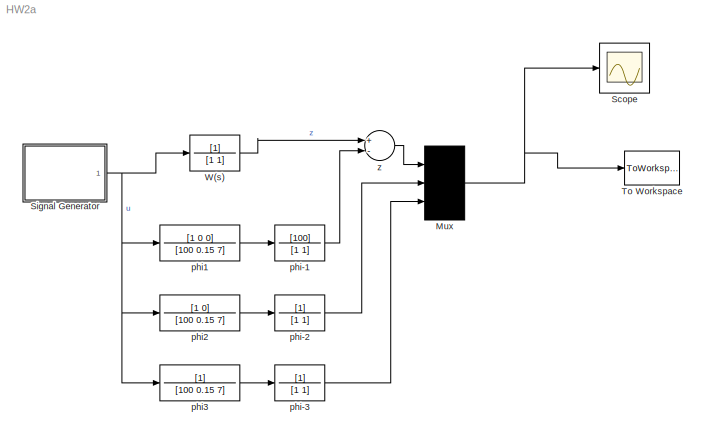
MODEL HW2a
KIND model
BLOCK [Mux] Mux
  Inputs = 3
  Ports = [3, 1]
  SID = 23
BLOCK [Scope] Scope
  Floating = off
  LegendLocations = 0.82167      0.7404     0.11808    0.094455
  NumInputPorts = 1
  Ports = [1]
  SID = 28
  ShowLegends = on
  TickLabels = on
  TimeRange = 50
  YMax = 20.000000
  YMin = -20.000000
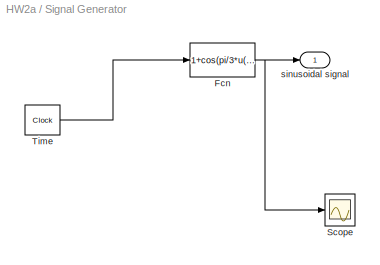
BLOCK [SubSystem] Signal Generator
  Ports = [0, 1]
  RequestExecContextInheritance = off
  SID = 29
  ShowPortLabels = none
BLOCK [Fcn] Signal Generator/Fcn
  Expr = 1+cos(pi/3*u(1))
  SID = 30
BLOCK [Scope] Signal Generator/Scope
  Floating = off
  NumInputPorts = 1
  Ports = [1]
  SID = 75
  SaveName = ScopeData1
BLOCK [Clock] Signal Generator/Time
  SID = 34
BLOCK [Outport] Signal Generator/sinusoidal signal
  IconDisplay = Port number
  SID = 35
BLOCK [ToWorkspace] To Workspace
  MaxDataPoints = 5000
  Ports = [1]
  SID = 48
  VariableName = yout
BLOCK [TransferFcn] W(s)
  SID = 49
BLOCK [TransferFcn] phi-1
  Numerator = [100]
  SID = 76
BLOCK [TransferFcn] phi-2
  SID = 77
BLOCK [TransferFcn] phi-3
  SID = 78
BLOCK [TransferFcn] phi1
  Denominator = [100 0.15 7]
  Numerator = [1 0 0]
  SID = 68
BLOCK [TransferFcn] phi2
  Denominator = [100 0.15 7]
  Numerator = [1 0]
  SID = 69
BLOCK [TransferFcn] phi3
  Denominator = [100 0.15 7]
  SID = 70
BLOCK [Sum] z
  InputSameDT = off
  Inputs = +-
  OutDataTypeStr = Inherit: Inherit via internal rule
  Ports = [2, 1]
  SID = 79
  SaturateOnIntegerOverflow = off
NET Mux:1 -> Scope:1, To Workspace:1
NET Signal Generator/Fcn:1 -> Signal Generator/Scope:1, Signal Generator/sinusoidal signal:1
LINE Signal Generator/Time:1 -> Signal Generator/Fcn:1
NET Signal Generator:1 -> W(s):1, phi1:1, phi2:1, phi3:1
LINE W(s):1 -> z:1
LINE phi-1:1 -> z:2
LINE phi-2:1 -> Mux:2
LINE phi-3:1 -> Mux:3
LINE phi1:1 -> phi-1:1
LINE phi2:1 -> phi-2:1
LINE phi3:1 -> phi-3:1
LINE z:1 -> Mux:1
note: NET lines group one-source signal fan-out (src -> all destinations, sorted); 1:1 wires keep LINE
